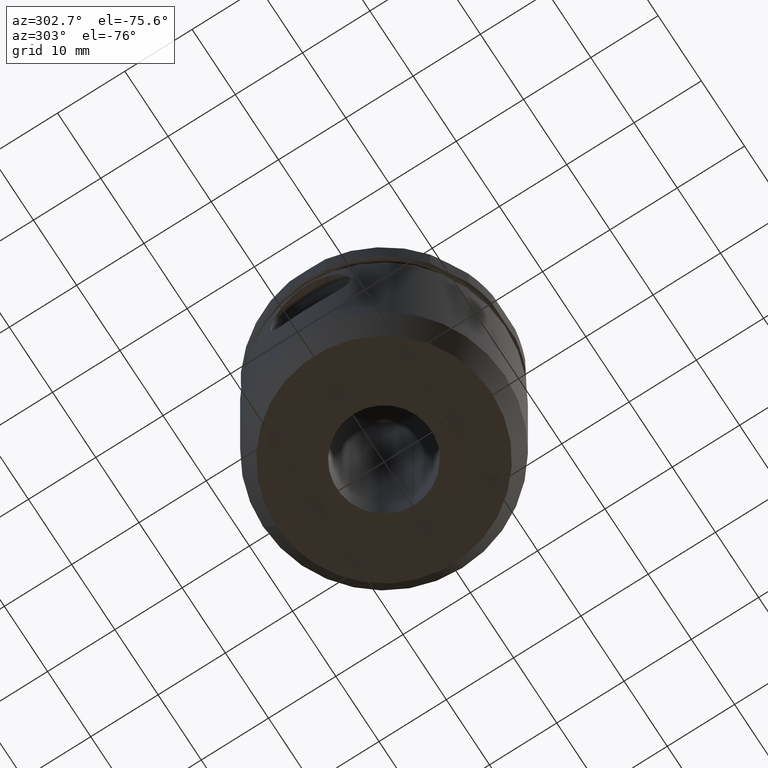
[diagram: clean part render]
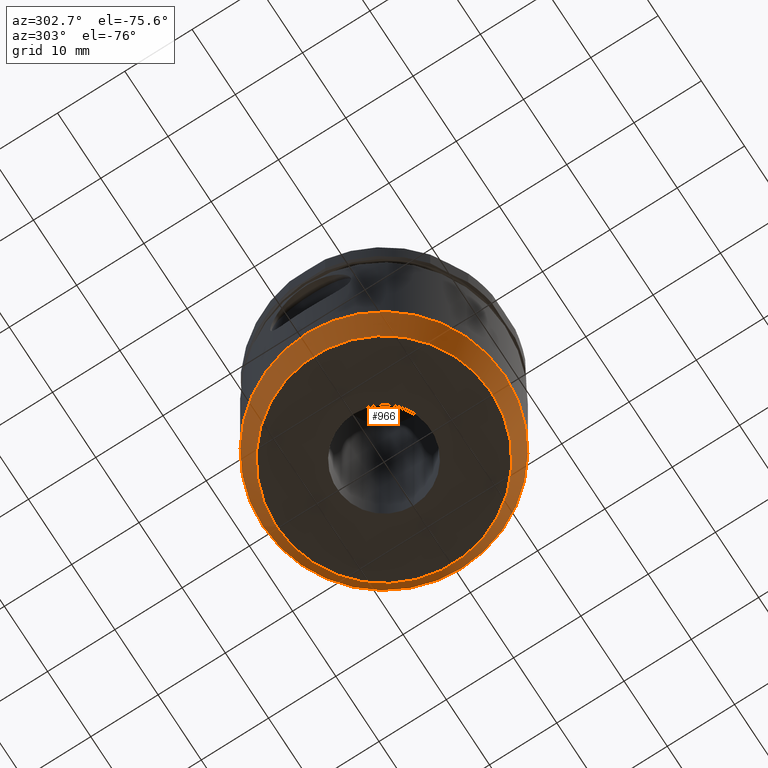
[diagram: same view with one face highlighted and labeled with its STEP entity id]
A machine part, auxiliary view. The second image highlights one B-rep face of the part: STEP entity #966.
In plain terms, the highlighted conical surface has half-angle 25 deg.
Its self-contained STEP definition (entity closure, byte-faithful):
#40=CONICAL_SURFACE('',#1099,16.,0.436332312998585);
#116=CIRCLE('',#989,18.);
#167=CIRCLE('',#1098,16.);
#410=ORIENTED_EDGE('',*,*,#425,.T.);
#411=ORIENTED_EDGE('',*,*,#545,.F.);
#425=EDGE_CURVE('',#551,#551,#116,.T.);
#545=EDGE_CURVE('',#637,#637,#167,.T.);
#551=VERTEX_POINT('',#1411);
#637=VERTEX_POINT('',#1825);
#768=EDGE_LOOP('',(#410));
#769=EDGE_LOOP('',(#411));
#866=FACE_BOUND('',#768,.T.);
#867=FACE_BOUND('',#769,.T.);
#966=ADVANCED_FACE('',(#866,#867),#40,.T.);
#989=AXIS2_PLACEMENT_3D('',#1410,#1116,#1117);
#1098=AXIS2_PLACEMENT_3D('',#1824,#1362,#1363);
#1099=AXIS2_PLACEMENT_3D('',#1826,#1364,#1365);
#1116=DIRECTION('',(1.22464605849178E-16,1.51929083932157E-64,-1.));
#1117=DIRECTION('',(6.16297582203915E-33,1.,7.54746404904039E-49));
#1362=DIRECTION('',(1.22464605849178E-16,1.51929083932157E-64,-1.));
#1363=DIRECTION('',(6.16297582203915E-33,1.,7.54746404904039E-49));
#1364=DIRECTION('',(-1.22464605849178E-16,-1.51929083932157E-64,1.));
#1365=DIRECTION('',(-6.16297582203915E-33,-1.,-7.54746404904039E-49));
#1410=CARTESIAN_POINT('',(5.35241414265399E-15,6.64018286655351E-63,-43.70580467344));
#1411=CARTESIAN_POINT('',(5.35241414265399E-15,18.,-43.70580467344));
#1824=CARTESIAN_POINT('',(5.87766653217606E-15,7.29180881039189E-63,-47.9948185144591));
#1825=CARTESIAN_POINT('',(5.87766653217606E-15,16.,-47.9948185144591));
#1826=CARTESIAN_POINT('',(5.87766653217606E-15,7.29180881039189E-63,-47.9948185144591));